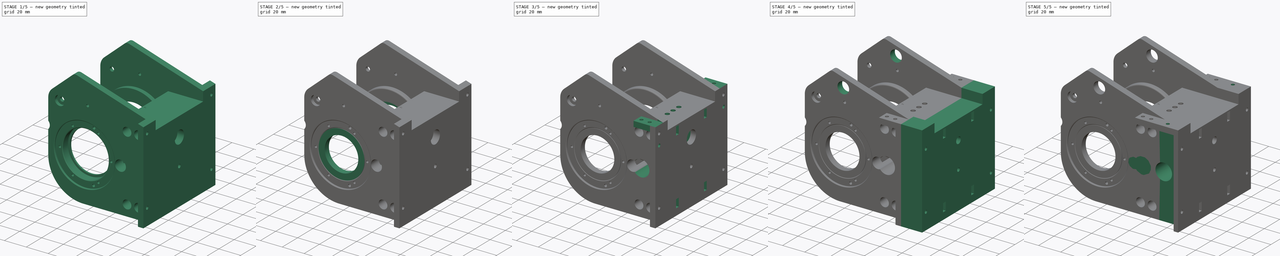
[diagram: build sequence overview — one tinted view per stage of 5, left to right]
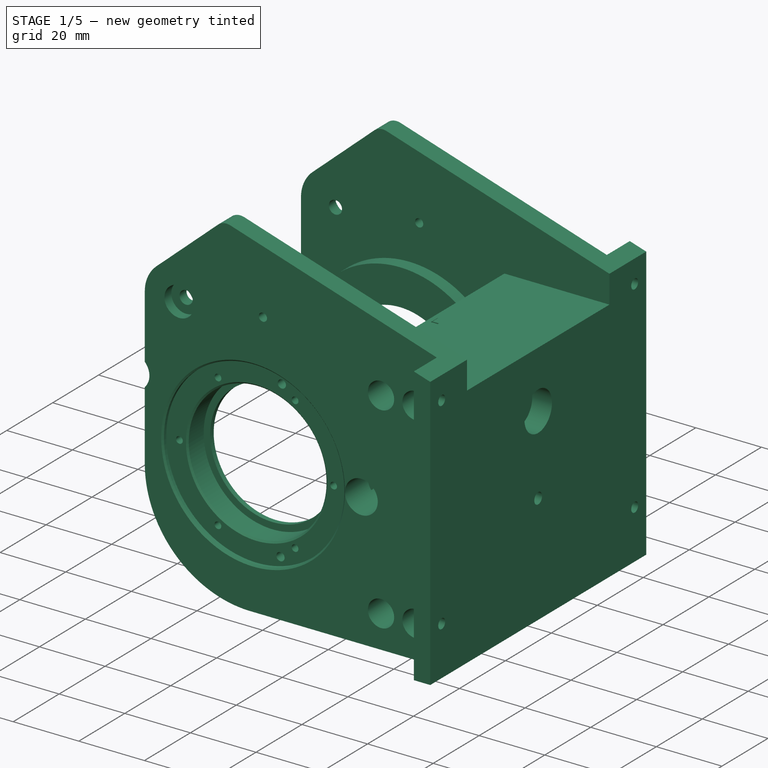
[diagram: stage 1 of 5 — iso view after this stage's code; geometry added in this stage tinted green]
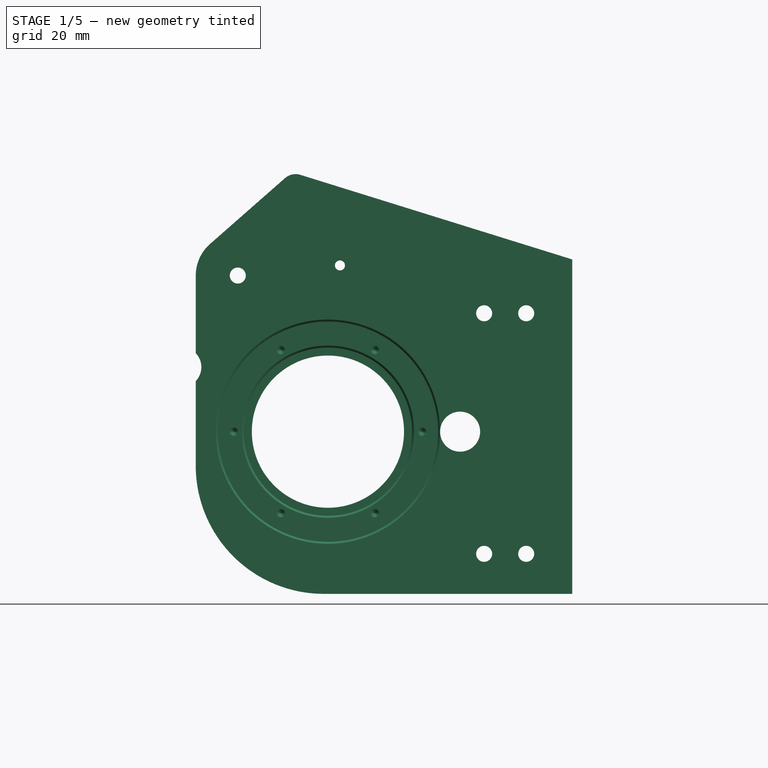
[diagram: stage 1 of 5 — front view after this stage's code; geometry added in this stage tinted green]
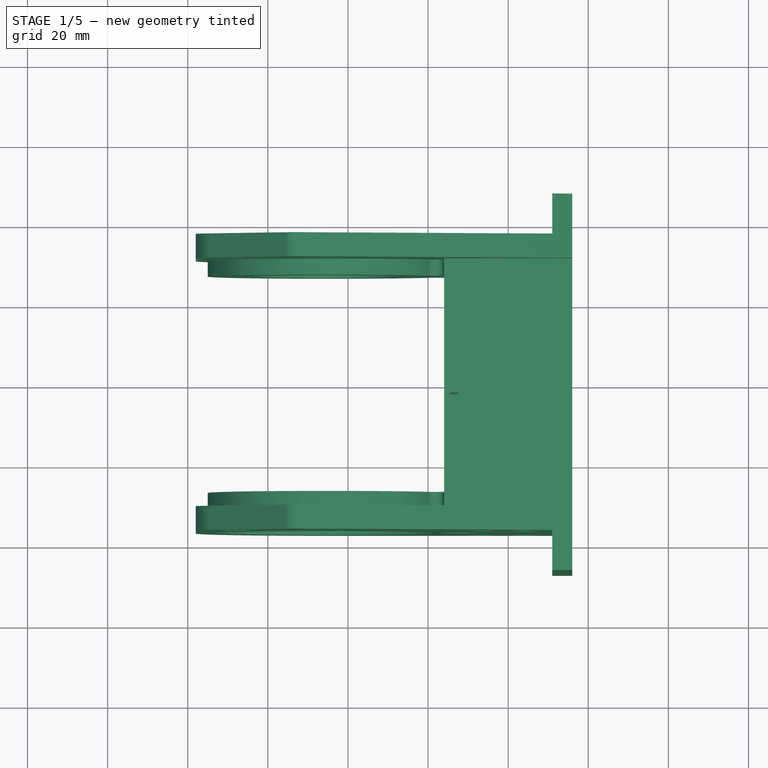
[diagram: stage 1 of 5 — top view after this stage's code; geometry added in this stage tinted green]
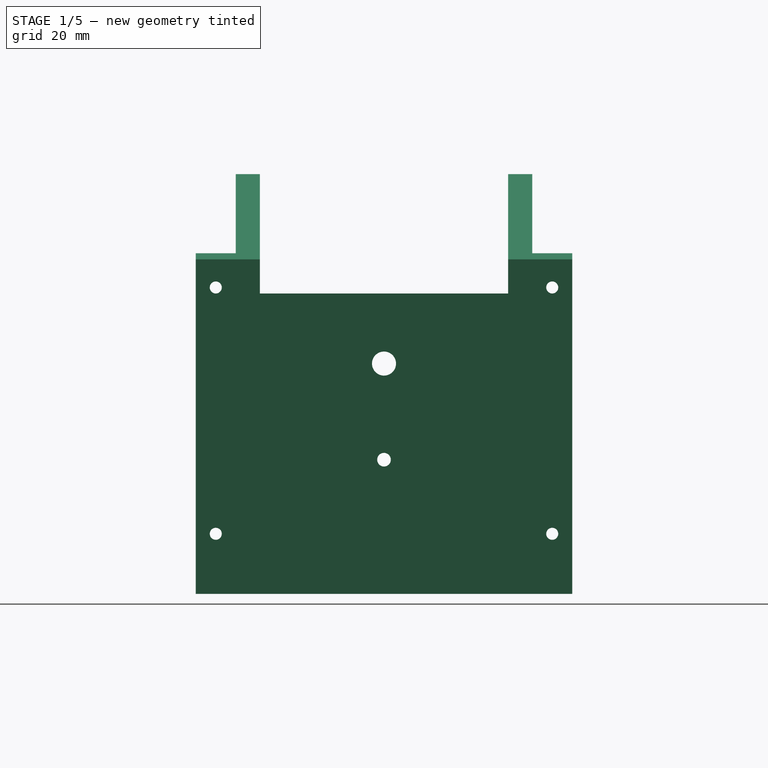
[diagram: stage 1 of 5 — right view after this stage's code; geometry added in this stage tinted green]
FCSTD DOCUMENT  (FreeCAD 0.21R33668 +26 (Git))
Label: 6_Robot_Link1_center_01
License: All rights reserved
LicenseURL: https://en.wikipedia.org/wiki/All_rights_reserved
objects: Sketcher::SketchObject×37, PartDesign::Pocket×25, PartDesign::Pad×11, Part::Feature×1, PartDesign::FeatureBase×1, PartDesign::Fillet×1, PartDesign::Body×1
note: 114 computed .brp shape members not serialized (recipe doc carries the construction recipe); baked Part::Feature solids carry a one-line shape summary decoded from their .brp

FEATURE [Part::Feature] Part__Feature  label="6_Robot_Link1_center_1_unit"
  shape: bbox 94 x 94 x 105.3 mm, 238 faces (baked)
FEATURE [PartDesign::FeatureBase] BaseFeature
  BaseFeature = -> Part__Feature
FEATURE [Sketcher::SketchObject] Sketch
  ExternalGeometry = -> [BaseFeature]
  FullyConstrained = true
  MapMode = 5
  Placement = pos=(-70.8,0,0) rot=(0.57735,-0.57735,-0.57735;2.0944rad)
  Support = -> [BaseFeature]
  sketch-geometry (1):
    g0: Circle CenterX=0 CenterY=-50.5 CenterZ=0 NormalX=0 NormalY=0 NormalZ=1 AngleXU=0 Radius=5.6
  constraints (2):
    c: Coincident(g0,g-3)
    c: Tangent(g0,g-3)
FEATURE [PartDesign::Pocket] Pocket
  BaseFeature = -> BaseFeature
  Direction = (1,0,0)
  Length = 22
  Length2 = 5
  Profile = -> Sketch
  ReferenceAxis = -> Sketch [N_Axis]
  Type = 0
FEATURE [Sketcher::SketchObject] Sketch001
  ExternalGeometry = -> [Pocket]
  FullyConstrained = true
  MapMode = 5
  Placement = pos=(0,-37,0) rot=(1,0,0;1.5708rad)
  Support = -> [Pocket]
  sketch-geometry (1):
    g0: Circle CenterX=-127.5 CenterY=-4.52886 CenterZ=0 NormalX=0 NormalY=0 NormalZ=1 AngleXU=0 Radius=7.5
  constraints (2):
    c: Coincident(g0,g-3)
    c: Diameter(g0) = 15
FEATURE [PartDesign::Pad] Pad
  BaseFeature = -> Pocket
  Direction = (0,-1,2e-16)
  Length = 10
  Length2 = 10
  Profile = -> Sketch001
  ReferenceAxis = -> Sketch001 [N_Axis]
  Reversed = true
  Type = 3
  UpToFace = -> Pocket [Face70]
FEATURE [Sketcher::SketchObject] Sketch002
  ExternalGeometry = -> [Pad]
  FullyConstrained = true
  MapMode = 5
  Placement = pos=(0,31,0) rot=(1,0,0;1.5708rad)
  Support = -> [Pad]
  sketch-geometry (1):
    g0: Circle CenterX=-127.5 CenterY=-4.52886 CenterZ=0 NormalX=0 NormalY=0 NormalZ=1 AngleXU=0 Radius=7.5
  constraints (2):
    c: Coincident(g0,g-3)
    c: Diameter(g0) = 15
FEATURE [PartDesign::Pad] Pad001
  BaseFeature = -> Pad
  Direction = (0,-1,2e-16)
  Length = 10
  Length2 = 10
  Profile = -> Sketch002
  ReferenceAxis = -> Sketch002 [N_Axis]
  Reversed = true
  Type = 3
  UpToFace = -> Pad [Face11]
FEATURE [Sketcher::SketchObject] Sketch003
  ExternalGeometry = -> [Pad001]
  FullyConstrained = true
  MapMode = 5
  Placement = pos=(0,-37,0) rot=(1,0,0;1.5708rad)
  Support = -> [Pad001]
  sketch-geometry (1):
    g0: Circle CenterX=-127.5 CenterY=-4.52886 CenterZ=0 NormalX=0 NormalY=0 NormalZ=1 AngleXU=0 Radius=2
  constraints (2):
    c: Coincident(g0,g-3)
    c: Diameter(g0) = 4
FEATURE [PartDesign::Pocket] Pocket001
  BaseFeature = -> Pad001
  Direction = (0,1,-2e-16)
  Length = 5
  Length2 = 5
  Profile = -> Sketch003
  ReferenceAxis = -> Sketch003 [N_Axis]
  Type = 1
FEATURE [Sketcher::SketchObject] Sketch004
  ExternalGeometry = -> [Pocket001]
  FullyConstrained = true
  MapMode = 5
  Placement = pos=(0,-37,0) rot=(1,0,0;1.5708rad)
  Support = -> [Pocket001]
  sketch-geometry (1):
    g0: Circle CenterX=-127.5 CenterY=-4.52886 CenterZ=0 NormalX=0 NormalY=0 NormalZ=1 AngleXU=0 Radius=4.5
  constraints (2):
    c: Coincident(g0,g-3)
    c: Diameter(g0) = 9
FEATURE [PartDesign::Pocket] Pocket002
  BaseFeature = -> Pocket001
  Direction = (0,1,-2e-16)
  Length = 3
  Length2 = 5
  Profile = -> Sketch004
  ReferenceAxis = -> Sketch004 [N_Axis]
  Type = 0
FEATURE [Sketcher::SketchObject] Sketch005
  ExternalGeometry = -> [Pocket002]
  FullyConstrained = true
  MapMode = 5
  Placement = pos=(0,37,0) rot=(0,0.707107,0.707107;3.14159rad)
  Support = -> [Pocket002]
  sketch-geometry (1):
    g0: Circle CenterX=127.5 CenterY=-4.52886 CenterZ=0 NormalX=0 NormalY=0 NormalZ=1 AngleXU=0 Radius=4.5
  constraints (2):
    c: Coincident(g0,g-3)
    c: Diameter(g0) = 9
FEATURE [PartDesign::Pocket] Pocket003
  BaseFeature = -> Pocket002
  Direction = (0,-1,2e-16)
  Length = 3
  Length2 = 5
  Profile = -> Sketch005
  ReferenceAxis = -> Sketch005 [N_Axis]
  Type = 0
FEATURE [Sketcher::SketchObject] Sketch006
  ExternalGeometry = -> [Pocket003]
  FullyConstrained = true
  MapMode = 5
  Placement = pos=(-76,0,0) rot=(0.57735,-0.57735,-0.57735;2.0944rad)
  Support = -> [Pocket003]
  sketch-geometry (7):
    g0: LineSegment StartX=5.19615 StartY=-29.5 StartZ=0 EndX=5.19615 EndY=-23.5 EndZ=0
    g1: LineSegment StartX=5.19615 StartY=-23.5 StartZ=0 EndX=0 EndY=-20.5 EndZ=0
    g2: LineSegment StartX=0 StartY=-20.5 StartZ=0 EndX=-5.19615 EndY=-23.5 EndZ=0
    g3: LineSegment StartX=-5.19615 StartY=-23.5 StartZ=0 EndX=-5.19615 EndY=-29.5 EndZ=0
    g4: LineSegment StartX=-5.19615 StartY=-29.5 StartZ=0 EndX=6.324e-13 EndY=-32.5 EndZ=0
    g5: LineSegment StartX=6.326e-13 StartY=-32.5 StartZ=0 EndX=5.19615 EndY=-29.5 EndZ=0
    g6: Circle CenterX=0 CenterY=-26.5 CenterZ=0 NormalX=0 NormalY=0 NormalZ=1 AngleXU=0 Radius=6
  constraints (17):
    c: Coincident(g0,g1)
    c: Coincident(g1,g2)
    c: Coincident(g2,g3)
    c: Coincident(g3,g4)
    c: Coincident(g4,g5)
    c: Coincident(g5,g0)
    c: Equal(g0, g1-g5) x5
    c: PointOnObject(g0,g6)
    c: PointOnObject(g1,g6)
    c: PointOnObject(g2,g6)
    c: PointOnObject(g3,g6)
    c: PointOnObject(g4,g6)
    c: PointOnObject(g5,g6)
    c: Diameter(g6) = 12
    c: Vertical(g6,g-3)
    c: Horizontal(g6,g-3)
    c: Vertical(g1,g6)
FEATURE [PartDesign::Pocket] Pocket004
  BaseFeature = -> Pocket003
  Direction = (1,0,0)
  Length = 22
  Length2 = 5
  Profile = -> Sketch006
  ReferenceAxis = -> Sketch006 [N_Axis]
  Type = 0
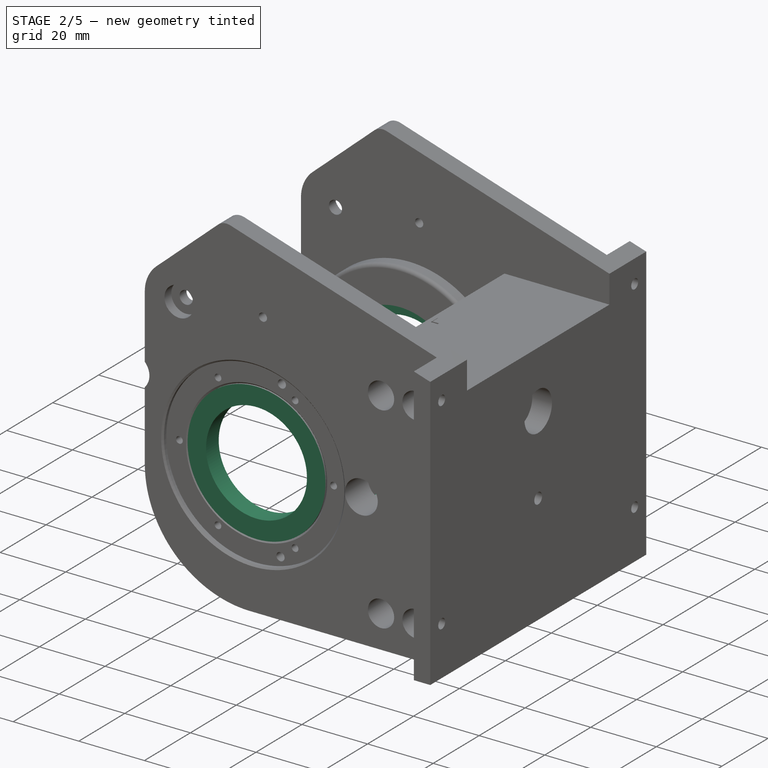
[diagram: stage 2 of 5 — iso view after this stage's code; geometry added in this stage tinted green]
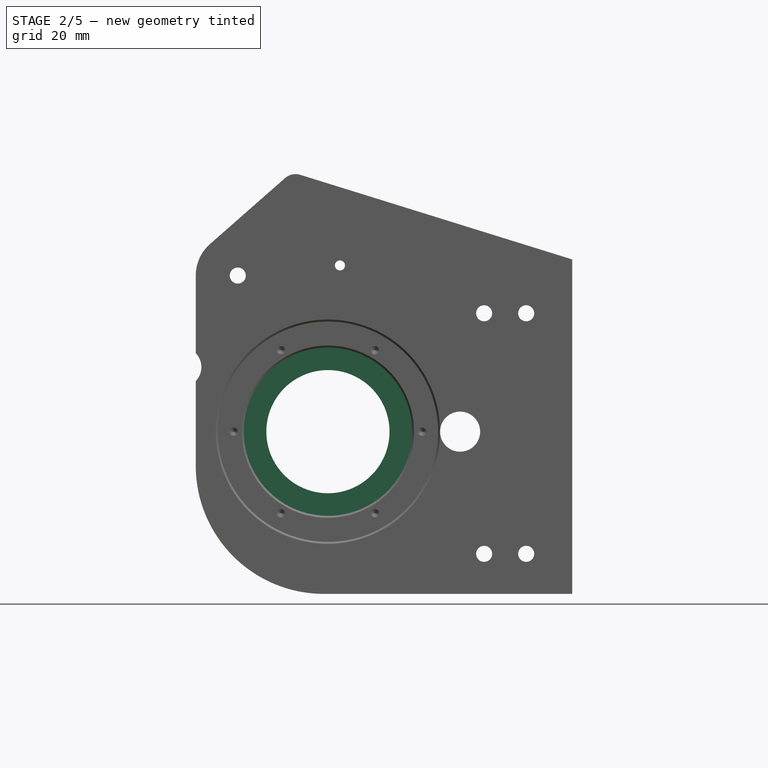
[diagram: stage 2 of 5 — front view after this stage's code; geometry added in this stage tinted green]
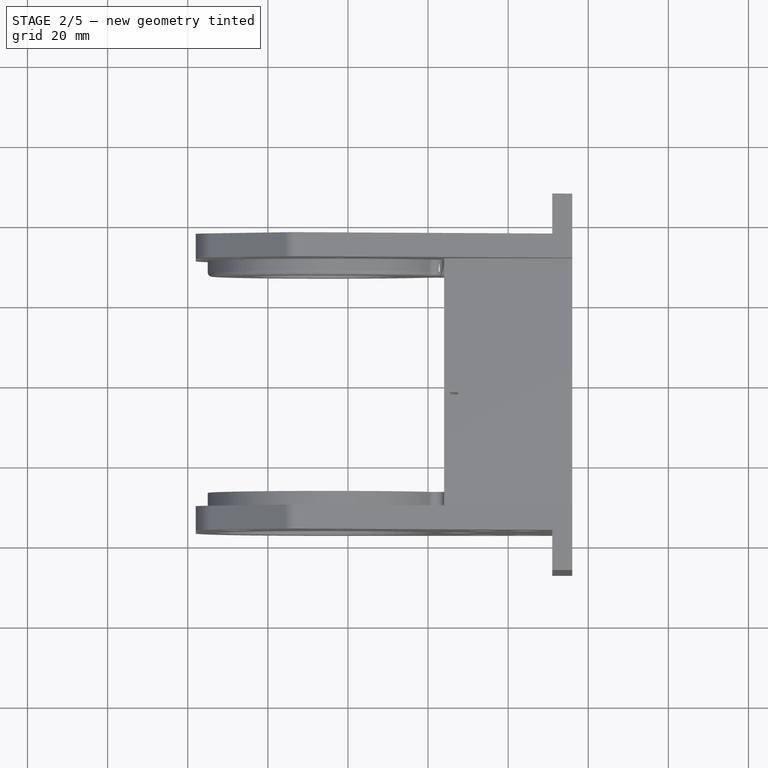
[diagram: stage 2 of 5 — top view after this stage's code; geometry added in this stage tinted green]
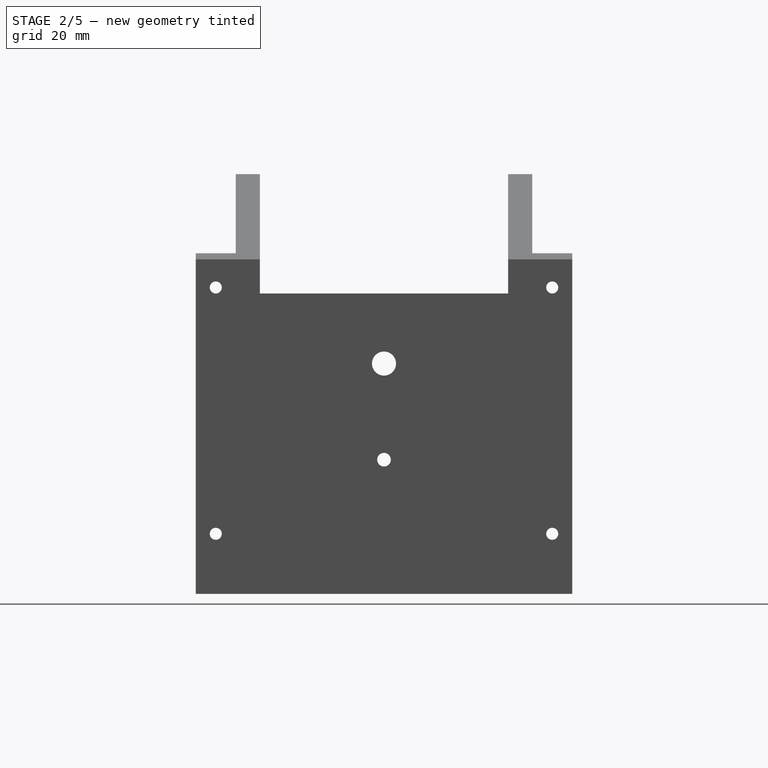
[diagram: stage 2 of 5 — right view after this stage's code; geometry added in this stage tinted green]
FEATURE [PartDesign::Fillet] Fillet
  Base = -> Pocket004 [Edge228,Edge227,Edge164,Edge160]
  BaseFeature = -> Pocket004
  Radius = 1.1
  SupportTransform = false
  UseAllEdges = false
FEATURE [Sketcher::SketchObject] Sketch007
  ExternalGeometry = -> [Fillet]
  FullyConstrained = true
  MapMode = 5
  Placement = pos=(-76,0,0) rot=(0.57735,-0.57735,-0.57735;2.0944rad)
  Support = -> [Fillet]
  sketch-geometry (1):
    g0: Circle CenterX=0 CenterY=-26.5 CenterZ=0 NormalX=0 NormalY=0 NormalZ=1 AngleXU=0 Radius=6
  constraints (2):
    c: Coincident(g0,g-3)
    c: Diameter(g0) = 12
FEATURE [PartDesign::Pocket] Pocket005
  BaseFeature = -> Fillet
  Direction = (1,0,0)
  Length = 15
  Length2 = 5
  Profile = -> Sketch007
  ReferenceAxis = -> Sketch007 [N_Axis]
  Type = 0
FEATURE [Sketcher::SketchObject] Sketch008
  ExternalGeometry = -> [Pocket005]
  FullyConstrained = true
  MapMode = 5
  Placement = pos=(0,28.5,0) rot=(0,0.707107,0.707107;3.14159rad)
  Support = -> [Pocket005]
  sketch-geometry (1):
    g0: Circle CenterX=105 CenterY=-43.5 CenterZ=0 NormalX=0 NormalY=0 NormalZ=1 AngleXU=0 Radius=21
  constraints (2):
    c: Coincident(g0,g-4)
    c: PointOnObject(g-4,g0)
FEATURE [PartDesign::Pad] Pad002
  BaseFeature = -> Pocket005
  Direction = (0,1,-2e-16)
  Length = 10
  Length2 = 10
  Profile = -> Sketch008
  ReferenceAxis = -> Sketch008 [N_Axis]
  Type = 3
  UpToFace = -> Pocket005 [Face218]
FEATURE [Sketcher::SketchObject] Sketch009
  ExternalGeometry = -> [Pad002]
  FullyConstrained = true
  MapMode = 5
  Placement = pos=(0,-28.5,0) rot=(1,0,0;1.5708rad)
  Support = -> [Pad002]
  sketch-geometry (1):
    g0: Circle CenterX=-105 CenterY=-43.5 CenterZ=0 NormalX=0 NormalY=0 NormalZ=1 AngleXU=0 Radius=21
  constraints (2):
    c: Coincident(g0,g-3)
    c: PointOnObject(g-4,g0)
FEATURE [PartDesign::Pad] Pad003
  BaseFeature = -> Pad002
  Direction = (0,-1,2e-16)
  Length = 10
  Length2 = 10
  Profile = -> Sketch009
  ReferenceAxis = -> Sketch009 [N_Axis]
  Type = 3
  UpToFace = -> Pad002 [Face142]
FEATURE [Sketcher::SketchObject] Sketch010
  ExternalGeometry = -> [Pad003]
  FullyConstrained = true
  MapMode = 5
  Placement = pos=(0,35.5,0) rot=(0,0.707107,0.707107;3.14159rad)
  Support = -> [Pad003]
  sketch-geometry (1):
    g0: Circle CenterX=105 CenterY=-43.5 CenterZ=0 NormalX=0 NormalY=0 NormalZ=1 AngleXU=0 Radius=15.375
  constraints (2):
    c: Coincident(g0,g-3)
    c: Diameter(g0) = 30.75
FEATURE [PartDesign::Pocket] Pocket006
  BaseFeature = -> Pad003
  Direction = (0,-1,2e-16)
  Length = 5
  Length2 = 5
  Profile = -> Sketch010
  ReferenceAxis = -> Sketch010 [N_Axis]
  Type = 1
FEATURE [Sketcher::SketchObject] Sketch011
  ExternalGeometry = -> [Pocket006]
  FullyConstrained = true
  MapMode = 5
  Placement = pos=(0,-28.5,5.7e-15) rot=(0,0.707107,0.707107;3.14159rad)
  Support = -> [Pocket006]
  sketch-geometry (1):
    g0: Circle CenterX=105 CenterY=-43.5 CenterZ=0 NormalX=0 NormalY=0 NormalZ=1 AngleXU=0 Radius=17.5
  constraints (2):
    c: Coincident(g0,g-3)
    c: Diameter(g0) = 35
FEATURE [PartDesign::Pocket] Pocket007
  BaseFeature = -> Pocket006
  Direction = (0,-1,2e-16)
  Length = 1.5
  Length2 = 5
  Profile = -> Sketch011
  ReferenceAxis = -> Sketch011 [N_Axis]
  Type = 0
FEATURE [Sketcher::SketchObject] Sketch012
  ExternalGeometry = -> [Pocket007]
  FullyConstrained = true
  MapMode = 5
  Placement = pos=(0,28.5,-5.7e-15) rot=(1,0,0;1.5708rad)
  Support = -> [Pocket007]
  sketch-geometry (1):
    g0: Circle CenterX=-105 CenterY=-43.5 CenterZ=0 NormalX=0 NormalY=0 NormalZ=1 AngleXU=0 Radius=17.5
  constraints (2):
    c: Coincident(g0,g-3)
    c: Diameter(g0) = 35
FEATURE [PartDesign::Pocket] Pocket008
  BaseFeature = -> Pocket007
  Direction = (0,1,-2e-16)
  Length = 1.5
  Length2 = 5
  Profile = -> Sketch012
  ReferenceAxis = -> Sketch012 [N_Axis]
  Type = 0
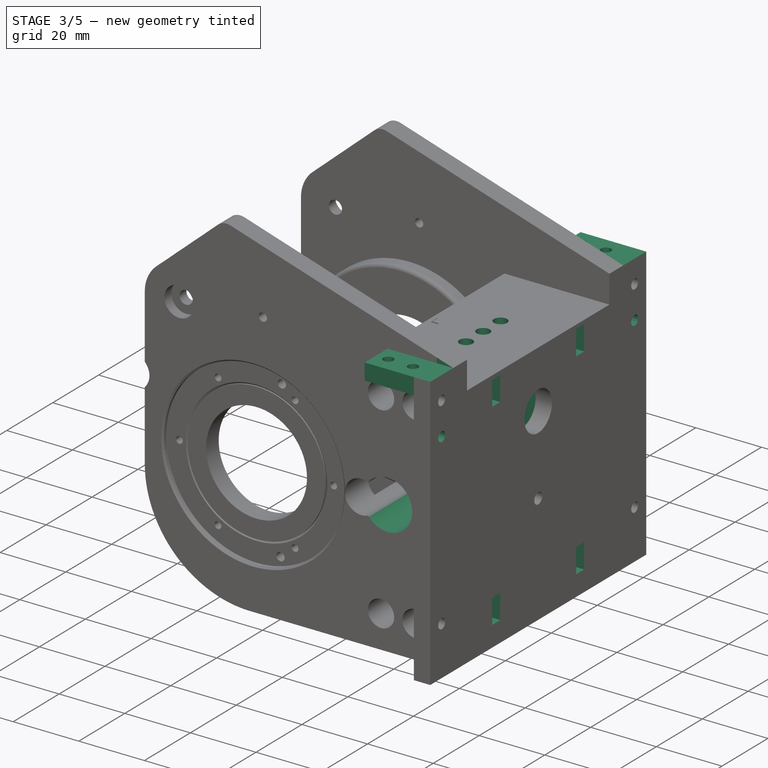
[diagram: stage 3 of 5 — iso view after this stage's code; geometry added in this stage tinted green]
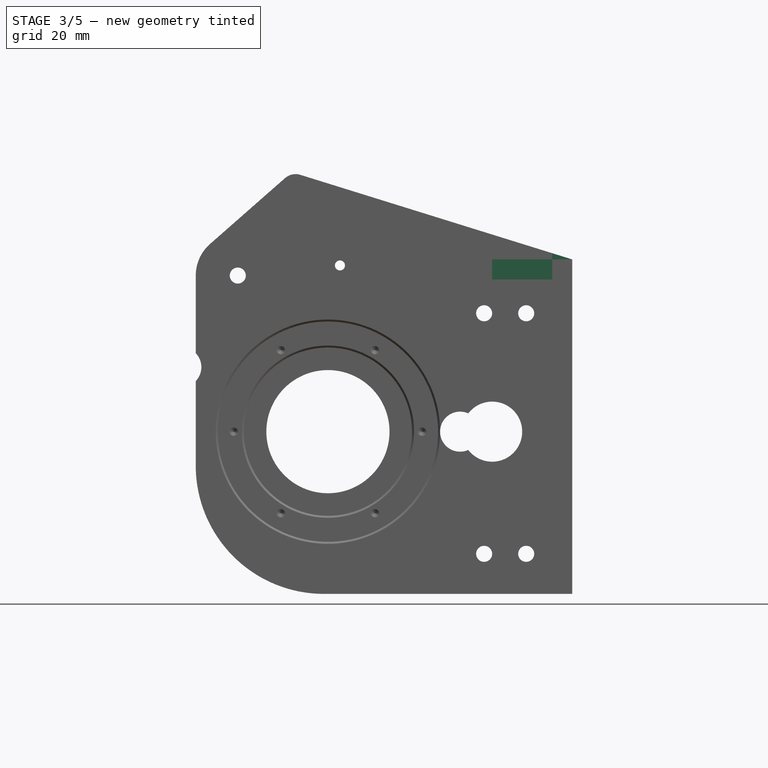
[diagram: stage 3 of 5 — front view after this stage's code; geometry added in this stage tinted green]
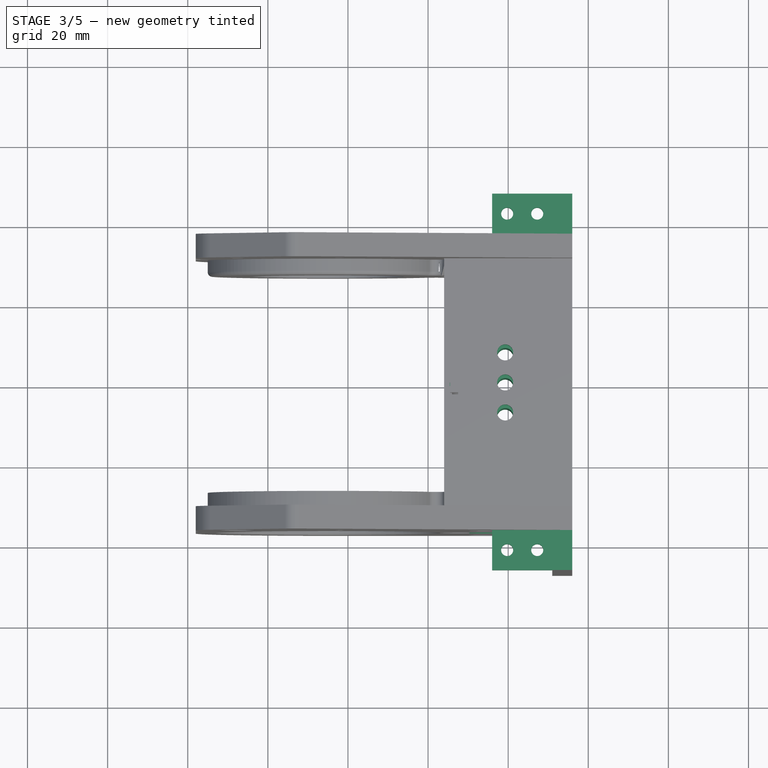
[diagram: stage 3 of 5 — top view after this stage's code; geometry added in this stage tinted green]
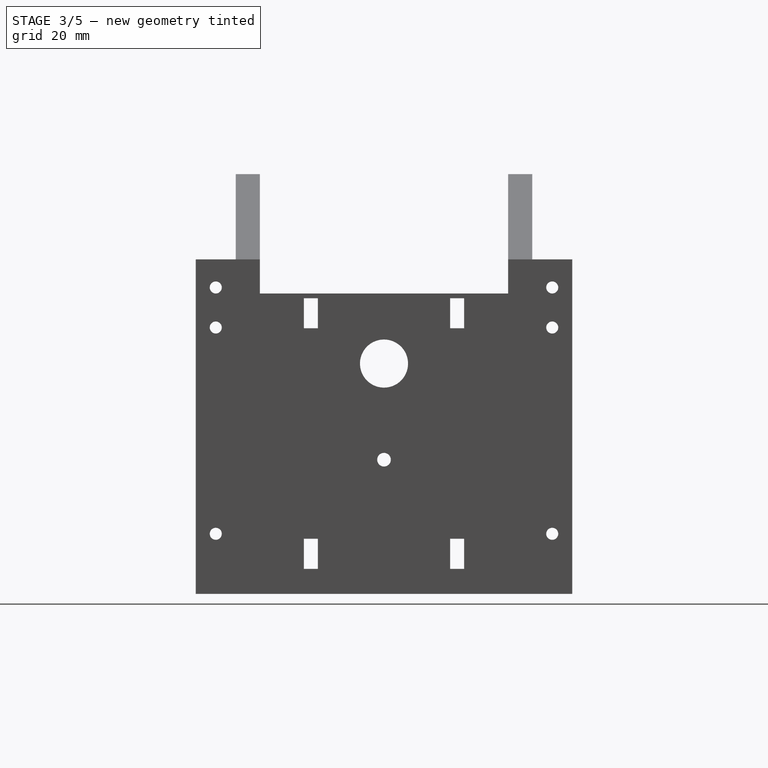
[diagram: stage 3 of 5 — right view after this stage's code; geometry added in this stage tinted green]
FEATURE [Sketcher::SketchObject] Sketch014
  FullyConstrained = false
  MapMode = 5
  Placement = pos=(-76,0,0) rot=(0.57735,-0.57735,-0.57735;2.0944rad)
  sketch-geometry (4):
    g0: LineSegment StartX=-14 StartY=-14 StartZ=0 EndX=14 EndY=-14 EndZ=0
    g1: LineSegment StartX=14 StartY=-14 StartZ=0 EndX=14 EndY=-61 EndZ=0
    g2: LineSegment StartX=14 StartY=-61 StartZ=0 EndX=-14 EndY=-61 EndZ=0
    g3: LineSegment StartX=-14 StartY=-61 StartZ=0 EndX=-14 EndY=-14 EndZ=0
  constraints (11):
    c: Coincident(g0,g1)
    c: Coincident(g1,g2)
    c: Coincident(g2,g3)
    c: Coincident(g3,g0)
    c: Horizontal(g0)
    c: Horizontal(g2)
    c: Vertical(g1)
    c: Vertical(g3)
    c: DistanceX(g-1,g0) = 14
    c: DistanceX(g0,g-1) = 14
    c: DistanceY(g1,g1) = 47
FEATURE [PartDesign::Pocket] Pocket009
  BaseFeature = -> Pocket008
  Direction = (1,0,0)
  Length = 27
  Length2 = 5
  Profile = -> Sketch014
  ReferenceAxis = -> Sketch014 [N_Axis]
  Type = 0
FEATURE [Sketcher::SketchObject] Sketch015
  ExternalGeometry = -> [Pocket009]
  FullyConstrained = true
  MapMode = 5
  Placement = pos=(0,37,-1.04e-14) rot=(0,0.707107,0.707107;3.14159rad)
  Support = -> [Pocket009]
  sketch-geometry (1):
    g0: Circle CenterX=64 CenterY=-43.5 CenterZ=0 NormalX=0 NormalY=0 NormalZ=1 AngleXU=0 Radius=7.5
  constraints (3):
    c: Diameter(g0) = 15
    c: Horizontal(g0,g-4)
    c: DistanceX(g-3,g0) = 15
FEATURE [PartDesign::Pocket] Pocket010
  BaseFeature = -> Pocket009
  Direction = (0,-1,2e-16)
  Length = 5
  Length2 = 5
  Profile = -> Sketch015
  ReferenceAxis = -> Sketch015 [N_Axis]
  Type = 1
FEATURE [Sketcher::SketchObject] Sketch016
  ExternalGeometry = -> [Pocket010]
  FullyConstrained = true
  MapMode = 5
  Placement = pos=(-76,0,0) rot=(0.57735,-0.57735,-0.57735;2.0944rad)
  Support = -> [Pocket010]
  sketch-geometry (16):
    g0: LineSegment StartX=16.5 StartY=-10.1944 StartZ=0 EndX=20 EndY=-10.1944 EndZ=0
    g1: LineSegment StartX=20 StartY=-10.1944 StartZ=0 EndX=20 EndY=-17.6944 EndZ=0
    g2: LineSegment StartX=20 StartY=-17.6944 StartZ=0 EndX=16.5 EndY=-17.6944 EndZ=0
    g3: LineSegment StartX=16.5 StartY=-17.6944 StartZ=0 EndX=16.5 EndY=-10.1944 EndZ=0
    g4: LineSegment StartX=-20 StartY=-10.1944 StartZ=0 EndX=-16.5 EndY=-10.1944 EndZ=0
    g5: LineSegment StartX=-16.5 StartY=-10.1944 StartZ=0 EndX=-16.5 EndY=-17.6944 EndZ=0
    g6: LineSegment StartX=-16.5 StartY=-17.6944 StartZ=0 EndX=-20 EndY=-17.6944 EndZ=0
    g7: LineSegment StartX=-20 StartY=-17.6944 StartZ=0 EndX=-20 EndY=-10.1944 EndZ=0
    g8: LineSegment StartX=16.5 StartY=-70.25 StartZ=0 EndX=20 EndY=-70.25 EndZ=0
    g9: LineSegment StartX=20 StartY=-70.25 StartZ=0 EndX=20 EndY=-77.75 EndZ=0
    g10: LineSegment StartX=20 StartY=-77.75 StartZ=0 EndX=16.5 EndY=-77.75 EndZ=0
    g11: LineSegment StartX=16.5 StartY=-77.75 StartZ=0 EndX=16.5 EndY=-70.25 EndZ=0
    g12: LineSegment StartX=-20 StartY=-70.25 StartZ=0 EndX=-16.5 EndY=-70.25 EndZ=0
    g13: LineSegment StartX=-16.5 StartY=-70.25 StartZ=0 EndX=-16.5 EndY=-77.75 EndZ=0
    g14: LineSegment StartX=-16.5 StartY=-77.75 StartZ=0 EndX=-20 EndY=-77.75 EndZ=0
    g15: LineSegment StartX=-20 StartY=-77.75 StartZ=0 EndX=-20 EndY=-70.25 EndZ=0
  constraints (49):
    c: Coincident(g0,g1)
    c: Coincident(g1,g2)
    c: Coincident(g2,g3)
    c: Coincident(g3,g0)
    c: Horizontal(g0)
    c: Horizontal(g2)
    c: Vertical(g1)
    c: Vertical(g3)
    c: Coincident(g4,g5)
    c: Coincident(g5,g6)
    c: Coincident(g6,g7)
    c: Coincident(g7,g4)
    c: Horizontal(g4)
    c: Horizontal(g6)
    c: Vertical(g5)
    c: Vertical(g7)
    c: Coincident(g8,g9)
    c: Coincident(g9,g10)
    c: Coincident(g10,g11)
    c: Coincident(g11,g8)
    c: Horizontal(g8)
    c: Horizontal(g10)
    c: Vertical(g9)
    c: Vertical(g11)
    c: Coincident(g12,g13)
    c: Coincident(g13,g14)
    c: Coincident(g14,g15)
    c: Coincident(g15,g12)
    c: Horizontal(g12)
    c: Horizontal(g14)
    c: Vertical(g13)
    c: Vertical(g15)
    c: DistanceY(g9,g9) = 7.5
    c: DistanceY(g13,g13) = 7.5
    c: Horizontal(g12,g8)
    c: Horizontal(g2,g5)
    c: Horizontal(g4,g0)
    c: Vertical(g5,g12)
    c: DistanceX(g12,g12) = 3.5
    c: DistanceX(g8,g8) = 3.5
    c: DistanceY(g-4,g-4) = 8
    c: DistanceY(g-4,g9) = 0.25
    c: DistanceY(g1,g1) = 7.5
    c: DistanceY(g0,g-3) = 0.25
    c: Vertical(g1,g8)
    c: Vertical(g2,g8)
    c: Vertical(g6,g12)
    c: DistanceX(g0,g-3) = 17
    c: DistanceX(g-5,g4) = 17
FEATURE [PartDesign::Pocket] Pocket011
  BaseFeature = -> Pocket010
  Direction = (1,0,0)
  Length = 5
  Length2 = 5
  Profile = -> Sketch016
  ReferenceAxis = -> Sketch016 [N_Axis]
  Type = 1
FEATURE [Sketcher::SketchObject] Sketch017
  ExternalGeometry = -> [Pocket011]
  FullyConstrained = true
  MapMode = 5
  Placement = pos=(0,-1.85e-14,-84) rot=(1,0,0;3.14159rad)
  Support = -> [Pocket011]
  sketch-geometry (3):
    g0: Circle CenterX=-60.75 CenterY=7.5 CenterZ=0 NormalX=0 NormalY=0 NormalZ=1 AngleXU=0 Radius=2
    g1: Circle CenterX=-60.75 CenterY=0 CenterZ=0 NormalX=0 NormalY=0 NormalZ=1 AngleXU=0 Radius=2
    g2: Circle CenterX=-60.75 CenterY=-7.5 CenterZ=0 NormalX=0 NormalY=0 NormalZ=1 AngleXU=0 Radius=2
  constraints (10):
    c: Diameter(g0) = 4
    c: Diameter(g1) = 4
    c: Diameter(g2) = 4
    c: Vertical(g0,g1)
    c: Vertical(g2,g1)
    c: DistanceY(g2,g1) = 7.5
    c: DistanceY(g-1,g0) = 7.5
    c: DistanceY(g1,g-1) = 0
    c: DistanceX(g-4,g-3) = 2.5
    c: DistanceX(g0,g-3) = 1.25
FEATURE [PartDesign::Pocket] Pocket012
  BaseFeature = -> Pocket011
  Direction = (0,2e-16,1)
  Length = 5
  Length2 = 5
  Profile = -> Sketch017
  ReferenceAxis = -> Sketch017 [N_Axis]
  Type = 1
FEATURE [Sketcher::SketchObject] Sketch018
  ExternalGeometry = -> [Pocket012]
  FullyConstrained = false
  MapMode = 5
  Placement = pos=(-49,0,0) rot=(0.57735,-0.57735,-0.57735;2.0944rad)
  Support = -> [Pocket012]
  sketch-geometry (8):
    g0: LineSegment StartX=-47 StartY=-0.5 StartZ=0 EndX=-37 EndY=-0.5 EndZ=0
    g1: LineSegment StartX=-37 StartY=-0.5 StartZ=0 EndX=-37 EndY=5.24842 EndZ=0
    g2: LineSegment StartX=-37 StartY=5.24842 StartZ=0 EndX=-47 EndY=5.24842 EndZ=0
    g3: LineSegment StartX=-47 StartY=5.24842 StartZ=0 EndX=-47 EndY=-0.5 EndZ=0
    g4: LineSegment StartX=47 StartY=-0.5 StartZ=0 EndX=37 EndY=-0.5 EndZ=0
    g5: LineSegment StartX=37 StartY=-0.5 StartZ=0 EndX=37 EndY=9.89827 EndZ=0
    g6: LineSegment StartX=37 StartY=9.89827 StartZ=0 EndX=47 EndY=9.89827 EndZ=0
    g7: LineSegment StartX=47 StartY=9.89827 StartZ=0 EndX=47 EndY=-0.5 EndZ=0
  constraints (20):
    c: Coincident(g0,g1)
    c: Coincident(g1,g2)
    c: Coincident(g2,g3)
    c: Coincident(g3,g0)
    c: Horizontal(g0)
    c: Horizontal(g2)
    c: Vertical(g1)
    c: Vertical(g3)
    c: Coincident(g0,g-4)
    c: Vertical(g1,g-5)
    c: Coincident(g4,g5)
    c: Coincident(g5,g6)
    c: Coincident(g6,g7)
    c: Coincident(g7,g4)
    c: Horizontal(g4)
    c: Horizontal(g6)
    c: Vertical(g5)
    c: Vertical(g7)
    c: Coincident(g4,g-3)
    c: Vertical(g-6,g5)
FEATURE [PartDesign::Pocket] Pocket013
  BaseFeature = -> Pocket012
  Direction = (1,0,0)
  Length = 5
  Length2 = 5
  Profile = -> Sketch018
  ReferenceAxis = -> Sketch018 [N_Axis]
  Type = 1
FEATURE [Sketcher::SketchObject] Sketch019
  ExternalGeometry = -> [Pocket013]
  FullyConstrained = true
  MapMode = 5
  Placement = pos=(-49,0,0) rot=(0.57735,-0.57735,-0.57735;2.0944rad)
  Support = -> [Pocket013]
  sketch-geometry (2):
    g0: Circle CenterX=-42 CenterY=-17.5 CenterZ=0 NormalX=0 NormalY=0 NormalZ=1 AngleXU=0 Radius=1.5
    g1: Circle CenterX=42 CenterY=-17.5 CenterZ=0 NormalX=0 NormalY=0 NormalZ=1 AngleXU=0 Radius=1.5
  constraints (6):
    c: Horizontal(g0,g1)
    c: Diameter(g1) = 3
    c: Diameter(g0) = 3
    c: Vertical(g-3,g0)
    c: Vertical(g1,g-4)
    c: DistanceY(g1,g-4) = 10
FEATURE [PartDesign::Pocket] Pocket014
  BaseFeature = -> Pocket013
  Direction = (1,0,0)
  Length = 5
  Length2 = 5
  Profile = -> Sketch019
  ReferenceAxis = -> Sketch019 [N_Axis]
  Type = 1
FEATURE [Sketcher::SketchObject] Sketch020
  ExternalGeometry = -> [Pocket014]
  FullyConstrained = true
  MapMode = 5
  Placement = pos=(-49,0,0) rot=(0.57735,-0.57735,-0.57735;2.0944rad)
  Support = -> [Pocket014]
  sketch-geometry (8):
    g0: LineSegment StartX=37 StartY=-0.5 StartZ=0 EndX=47 EndY=-0.5 EndZ=0
    g1: LineSegment StartX=47 StartY=-0.5 StartZ=0 EndX=47 EndY=-5.5 EndZ=0
    g2: LineSegment StartX=47 StartY=-5.5 StartZ=0 EndX=37 EndY=-5.5 EndZ=0
    g3: LineSegment StartX=37 StartY=-5.5 StartZ=0 EndX=37 EndY=-0.5 EndZ=0
    g4: LineSegment StartX=-37 StartY=-0.5 StartZ=0 EndX=-47 EndY=-0.5 EndZ=0
    g5: LineSegment StartX=-47 StartY=-0.5 StartZ=0 EndX=-47 EndY=-5.5 EndZ=0
    g6: LineSegment StartX=-47 StartY=-5.5 StartZ=0 EndX=-37 EndY=-5.5 EndZ=0
    g7: LineSegment StartX=-37 StartY=-5.5 StartZ=0 EndX=-37 EndY=-0.5 EndZ=0
  constraints (22):
    c: Coincident(g0,g1)
    c: Coincident(g1,g2)
    c: Coincident(g2,g3)
    c: Coincident(g3,g0)
    c: Horizontal(g0)
    c: Horizontal(g2)
    c: Vertical(g1)
    c: Vertical(g3)
    c: Coincident(g0,g-4)
    c: Vertical(g0,g-4)
    c: DistanceY(g1,g1) = 5
    c: Coincident(g4,g5)
    c: Coincident(g5,g6)
    c: Coincident(g6,g7)
    c: Coincident(g7,g4)
    c: Horizontal(g4)
    c: Horizontal(g6)
    c: Vertical(g5)
    c: Vertical(g7)
    c: Coincident(g4,g-3)
    c: Vertical(g4,g-3)
    c: Horizontal(g5,g1)
FEATURE [PartDesign::Pad] Pad004
  BaseFeature = -> Pocket014
  Direction = (-1,0,0)
  Length = 15
  Length2 = 10
  Profile = -> Sketch020
  ReferenceAxis = -> Sketch020 [N_Axis]
  Type = 0
FEATURE [Sketcher::SketchObject] Sketch021
  ExternalGeometry = -> [Pad004]
  FullyConstrained = true
  MapMode = 5
  Placement = pos=(0,0,-0.5) rot=(0,0,1;0rad)
  Support = -> [Pad004]
  sketch-geometry (4):
    g0: Circle CenterX=-60.25 CenterY=-42 CenterZ=0 NormalX=0 NormalY=0 NormalZ=1 AngleXU=0 Radius=1.5
    g1: Circle CenterX=-52.75 CenterY=-42 CenterZ=0 NormalX=0 NormalY=0 NormalZ=1 AngleXU=0 Radius=1.5
    g2: Circle CenterX=-60.25 CenterY=42 CenterZ=0 NormalX=0 NormalY=0 NormalZ=1 AngleXU=0 Radius=1.5
    g3: Circle CenterX=-52.75 CenterY=42 CenterZ=0 NormalX=0 NormalY=0 NormalZ=1 AngleXU=0 Radius=1.5
  constraints (15):
    c: Diameter(g1) = 3
    c: Diameter(g0) = 3
    c: DistanceY(g-3,g-3) = 10
    c: DistanceY(g0,g-3) = 5
    c: Horizontal(g0,g1)
    c: DistanceX(g-4,g-4) = 15
    c: DistanceX(g-3,g0) = 3.75
    c: DistanceX(g1,g-4) = 3.75
    c: Equal(g3,g1)
    c: Equal(g2,g3)
    c: Horizontal(g2,g3)
    c: Vertical(g3,g1)
    c: Vertical(g0,g2)
    c: DistanceY(g-5,g-5) = 10
    c: DistanceY(g2,g-5) = 5
FEATURE [PartDesign::Pocket] Pocket015
  BaseFeature = -> Pad004
  Direction = (0,0,-1)
  Length = 5
  Length2 = 5
  Profile = -> Sketch021
  ReferenceAxis = -> Sketch021 [N_Axis]
  Type = 1
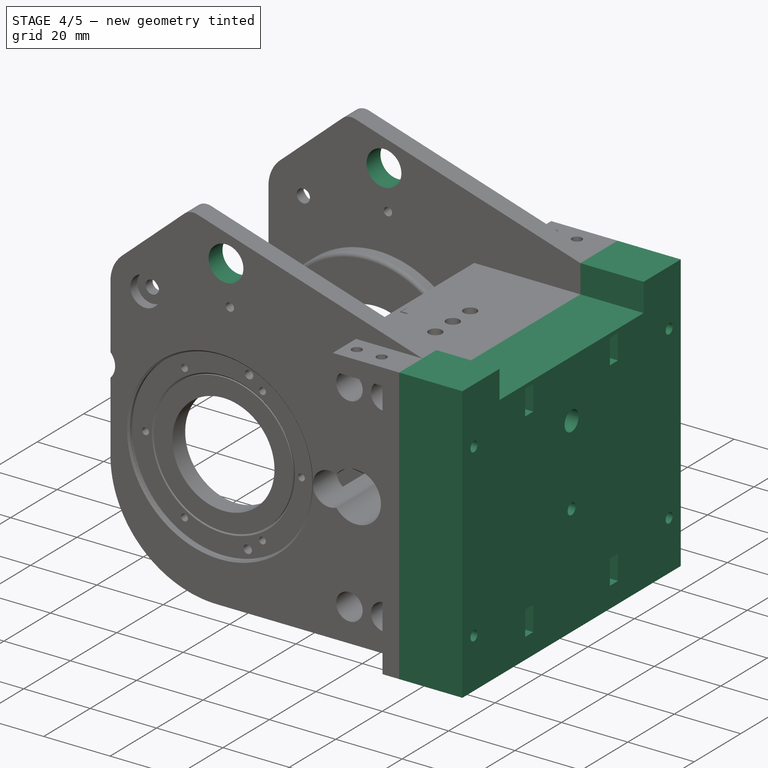
[diagram: stage 4 of 5 — iso view after this stage's code; geometry added in this stage tinted green]
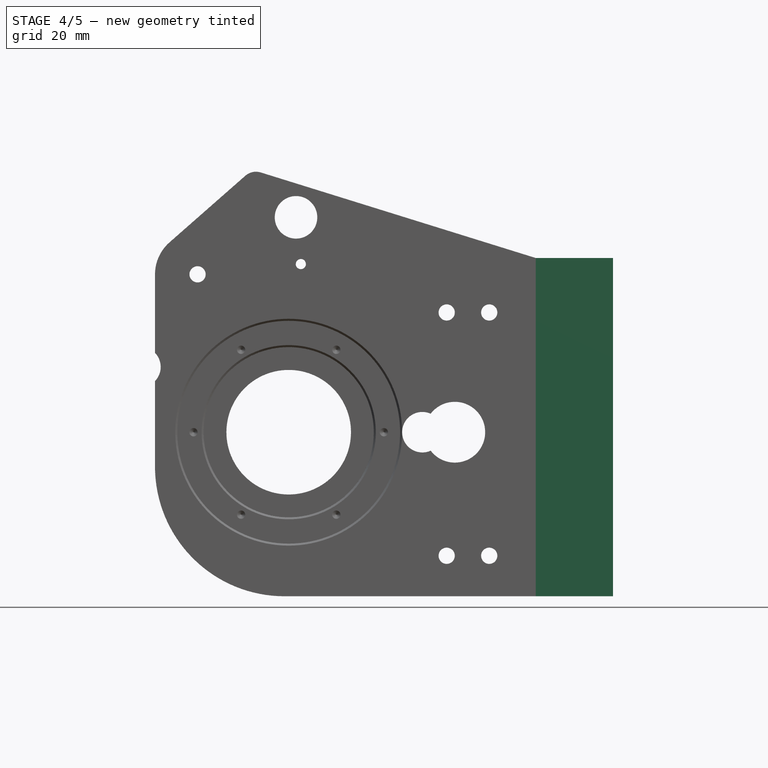
[diagram: stage 4 of 5 — front view after this stage's code; geometry added in this stage tinted green]
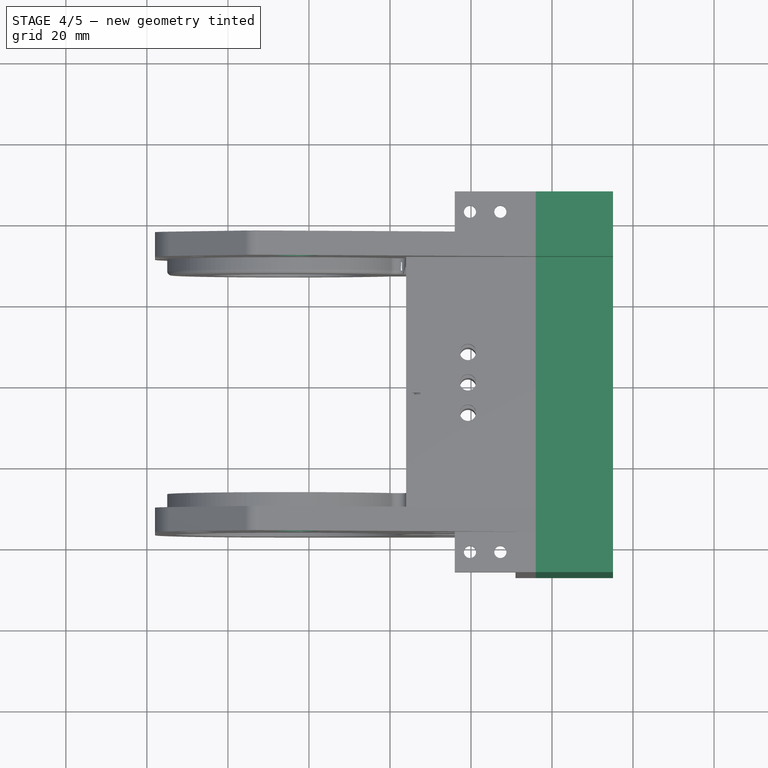
[diagram: stage 4 of 5 — top view after this stage's code; geometry added in this stage tinted green]
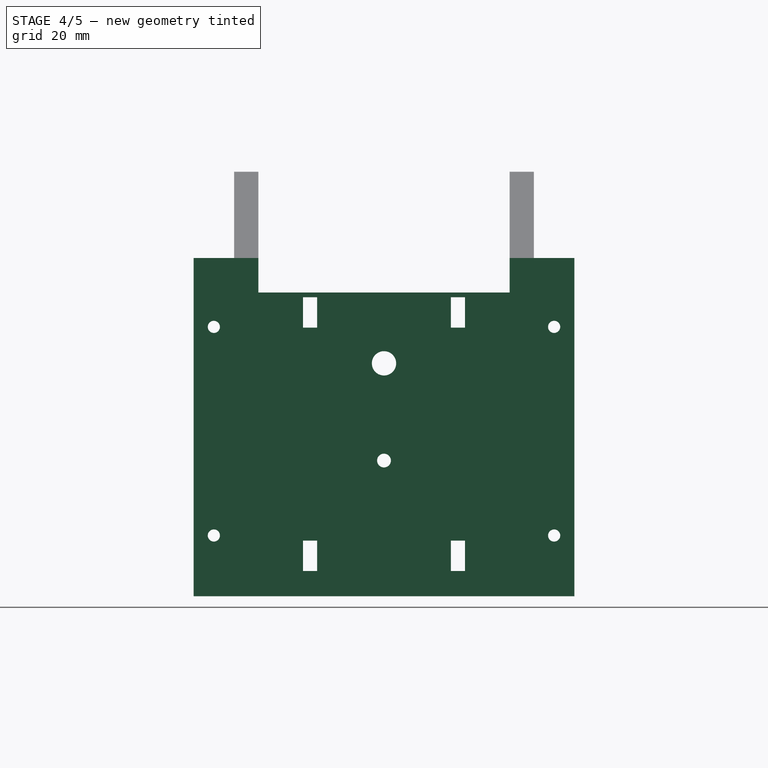
[diagram: stage 4 of 5 — right view after this stage's code; geometry added in this stage tinted green]
FEATURE [Sketcher::SketchObject] Sketch022
  ExternalGeometry = -> [Pocket015]
  FullyConstrained = true
  MapMode = 5
  Placement = pos=(0,-37,0) rot=(1,0,0;1.5708rad)
  Support = -> [Pocket015]
  sketch-geometry (1):
    g0: Circle CenterX=-103.195 CenterY=9.53929 CenterZ=0 NormalX=0 NormalY=0 NormalZ=1 AngleXU=0 Radius=5.25
  constraints (4):
    c: DistanceX(g-3,g-4) = 41
    c: Diameter(g0) = 10.5
    c: Distance(g-3,g0) = 53.07
    c: Distance(g-4,g0) = 65.95
FEATURE [PartDesign::Pocket] Pocket016
  BaseFeature = -> Pocket015
  Direction = (0,1,-2e-16)
  Length = 5
  Length2 = 5
  Profile = -> Sketch022
  ReferenceAxis = -> Sketch022 [N_Axis]
  Type = 1
FEATURE [Sketcher::SketchObject] Sketch023
  ExternalGeometry = -> [Pocket016]
  FullyConstrained = false
  MapMode = 5
  Placement = pos=(-44,0,0) rot=(0.57735,0.57735,0.57735;2.0944rad)
  Support = -> [Pocket016]
  sketch-geometry (1):
    g0: Circle CenterX=0 CenterY=-26.5 CenterZ=0 NormalX=0 NormalY=0 NormalZ=1 AngleXU=0 Radius=10.225
  constraints (2):
    c: Diameter(g-3) = 12
    c: Coincident(g0,g-3)
FEATURE [PartDesign::Pad] Pad005
  BaseFeature = -> Pocket016
  Direction = (1,0,0)
  Length = 10
  Length2 = 10
  Profile = -> Sketch023
  ReferenceAxis = -> Sketch023 [N_Axis]
  Reversed = true
  Type = 3
  UpToFace = -> Pocket016 [Face43]
FEATURE [Sketcher::SketchObject] Sketch024
  ExternalGeometry = -> [Pad005]
  FullyConstrained = true
  MapMode = 5
  Placement = pos=(-49,0,0) rot=(0.57735,-0.57735,-0.57735;2.0944rad)
  Support = -> [Pad005]
  sketch-geometry (1):
    g0: Circle CenterX=0 CenterY=-26.5 CenterZ=0 NormalX=0 NormalY=0 NormalZ=1 AngleXU=0 Radius=3
  constraints (2):
    c: Coincident(g0,g-3)
    c: Diameter(g0) = 6
FEATURE [PartDesign::Pocket] Pocket017
  BaseFeature = -> Pad005
  Direction = (1,0,0)
  Length = 5
  Length2 = 5
  Profile = -> Sketch024
  ReferenceAxis = -> Sketch024 [N_Axis]
  Type = 1
FEATURE [Sketcher::SketchObject] Sketch025
  ExternalGeometry = -> [Pocket017]
  FullyConstrained = true
  MapMode = 5
  Placement = pos=(-49,0,0) rot=(0.57735,-0.57735,-0.57735;2.0944rad)
  Support = -> [Pocket017]
  sketch-geometry (1):
    g0: Circle CenterX=0 CenterY=-26.5 CenterZ=0 NormalX=0 NormalY=0 NormalZ=1 AngleXU=0 Radius=6
  constraints (2):
    c: Coincident(g0,g-3)
    c: Diameter(g0) = 12
FEATURE [PartDesign::Pocket] Pocket018
  BaseFeature = -> Pocket017
  Direction = (1,0,0)
  Length = 3
  Length2 = 5
  Profile = -> Sketch025
  ReferenceAxis = -> Sketch025 [N_Axis]
  Type = 0
FEATURE [Sketcher::SketchObject] Sketch027
  ExternalGeometry = -> [Pocket018]
  FullyConstrained = false
  MapMode = 5
  Placement = pos=(-44,0,0) rot=(0.57735,0.57735,0.57735;2.0944rad)
  Support = -> [Pocket018]
  sketch-geometry (26):
    g0: LineSegment StartX=-47 StartY=-0.5 StartZ=0 EndX=-31 EndY=-0.5 EndZ=0
    g1: LineSegment StartX=47 StartY=-0.5 StartZ=0 EndX=47 EndY=-84 EndZ=0
    g2: LineSegment StartX=47 StartY=-84 StartZ=0 EndX=-47 EndY=-84 EndZ=0
    g3: LineSegment StartX=-47 StartY=-84 StartZ=0 EndX=-47 EndY=-0.5 EndZ=0
    g4: LineSegment StartX=31 StartY=-0.5 StartZ=0 EndX=31 EndY=-9 EndZ=0
    g5: LineSegment StartX=31 StartY=-9 StartZ=0 EndX=-31 EndY=-9 EndZ=0
    g6: LineSegment StartX=-31 StartY=-9 StartZ=0 EndX=-31 EndY=-0.5 EndZ=0
    g7: LineSegment StartX=31 StartY=-0.5 StartZ=0 EndX=47 EndY=-0.5 EndZ=0
    g8: LineSegment StartX=-20 StartY=-70.25 StartZ=0 EndX=-16.5 EndY=-70.25 EndZ=0
    g9: LineSegment StartX=-16.5 StartY=-70.25 StartZ=0 EndX=-16.5 EndY=-77.75 EndZ=0
    g10: LineSegment StartX=-16.5 StartY=-77.75 StartZ=0 EndX=-20 EndY=-77.75 EndZ=0
    g11: LineSegment StartX=-20 StartY=-77.75 StartZ=0 EndX=-20 EndY=-70.25 EndZ=0
    g12: LineSegment StartX=20 StartY=-70.25 StartZ=0 EndX=16.5 EndY=-70.25 EndZ=0
    g13: LineSegment StartX=16.5 StartY=-70.25 StartZ=0 EndX=16.5 EndY=-77.75 EndZ=0
    g14: LineSegment StartX=16.5 StartY=-77.75 StartZ=0 EndX=20 EndY=-77.75 EndZ=0
    g15: LineSegment StartX=20 StartY=-77.75 StartZ=0 EndX=20 EndY=-70.25 EndZ=0
    g16: LineSegment StartX=20 StartY=-10.1944 StartZ=0 EndX=16.5 EndY=-10.1944 EndZ=0
    g17: LineSegment StartX=16.5 StartY=-10.1944 StartZ=0 EndX=16.5 EndY=-17.6944 EndZ=0
    g18: LineSegment StartX=16.5 StartY=-17.6944 StartZ=0 EndX=20 EndY=-17.6944 EndZ=0
    g19: LineSegment StartX=20 StartY=-17.6944 StartZ=0 EndX=20 EndY=-10.1944 EndZ=0
    g20: LineSegment StartX=-16.5 StartY=-10.1944 StartZ=0 EndX=-20 EndY=-10.1944 EndZ=0
    g21: LineSegment StartX=-20 StartY=-10.1944 StartZ=0 EndX=-20 EndY=-17.6944 EndZ=0
    g22: LineSegment StartX=-20 StartY=-17.6944 StartZ=0 EndX=-16.5 EndY=-17.6944 EndZ=0
    g23: LineSegment StartX=-16.5 StartY=-17.6944 StartZ=0 EndX=-16.5 EndY=-10.1944 EndZ=0
    g24: Circle CenterX=0 CenterY=-50.5 CenterZ=0 NormalX=0 NormalY=0 NormalZ=1 AngleXU=0 Radius=1.7
    g25: Circle CenterX=0 CenterY=-26.5 CenterZ=0 NormalX=0 NormalY=0 NormalZ=1 AngleXU=0 Radius=3
  constraints (66):
    c: Coincident(g7,g1)
    c: Coincident(g1,g2)
    c: Coincident(g2,g3)
    c: Coincident(g3,g0)
    c: Horizontal(g0)
    c: Horizontal(g2)
    c: Vertical(g1)
    c: Vertical(g3)
    c: Coincident(g0,g-3)
    c: Coincident(g1,g-4)
    c: Coincident(g4,g5)
    c: Coincident(g5,g6)
    c: Horizontal(g5)
    c: Vertical(g4)
    c: Vertical(g6)
    c: Coincident(g4,g-6)
    c: DistanceY(g1,g1) = 83.5
    c: DistanceY(g4,g4) = 8.5
    c: DistanceY(g6,g6) = 8.5
    c: DistanceX(g7,g7) = 16
    c: DistanceX(g5,g5) = 62
    c: DistanceX(g0,g0) = 16
    c: Horizontal(g7,g4)
    c: Coincident(g8,g9)
    c: Coincident(g9,g10)
    c: Coincident(g10,g11)
    c: Coincident(g11,g8)
    c: Horizontal(g8)
    c: Horizontal(g10)
    c: Vertical(g9)
    c: Vertical(g11)
    c: Coincident(g8,g-13)
    c: Coincident(g9,g-14)
    c: Coincident(g12,g13)
    c: Coincident(g13,g14)
    c: Coincident(g14,g15)
    c: Coincident(g15,g12)
    c: Horizontal(g12)
    c: Horizontal(g14)
    c: Vertical(g13)
    c: Vertical(g15)
    c: Coincident(g12,g-12)
    c: Coincident(g13,g-11)
    c: Coincident(g16,g17)
    c: Coincident(g17,g18)
    c: Coincident(g18,g19)
    c: Coincident(g19,g16)
    c: Horizontal(g16)
    c: Horizontal(g18)
    c: Vertical(g17)
    c: Vertical(g19)
    c: Coincident(g16,g-10)
    c: Coincident(g17,g-9)
    c: Coincident(g20,g21)
    c: Coincident(g21,g22)
    c: Coincident(g22,g23)
    c: Coincident(g23,g20)
    c: Horizontal(g20)
    c: Horizontal(g22)
    c: Vertical(g21)
    c: Vertical(g23)
    c: Coincident(g20,g-7)
    c: Coincident(g21,g-8)
    c: Coincident(g24,g-15)
    c: Coincident(g25,g-16)
    c: Diameter(g25) = 6
FEATURE [PartDesign::Pad] Pad006
  BaseFeature = -> Pocket018
  Direction = (1,0,0)
  Length = 19.0518
  Length2 = 10
  Profile = -> Sketch027
  ReferenceAxis = -> Sketch027 [N_Axis]
  Type = 0
FEATURE [Sketcher::SketchObject] Sketch028
  ExternalGeometry = -> [Pad006]
  FullyConstrained = true
  MapMode = 5
  Placement = pos=(-49,0,0) rot=(0.57735,-0.57735,-0.57735;2.0944rad)
  Support = -> [Pad006]
  sketch-geometry (4):
    g0: LineSegment StartX=-14 StartY=-14 StartZ=0 EndX=14 EndY=-14 EndZ=0
    g1: LineSegment StartX=14 StartY=-14 StartZ=0 EndX=14 EndY=-61 EndZ=0
    g2: LineSegment StartX=14 StartY=-61 StartZ=0 EndX=-14 EndY=-61 EndZ=0
    g3: LineSegment StartX=-14 StartY=-61 StartZ=0 EndX=-14 EndY=-14 EndZ=0
  constraints (11):
    c: Coincident(g0,g1)
    c: Coincident(g1,g2)
    c: Coincident(g2,g3)
    c: Coincident(g3,g0)
    c: Horizontal(g0)
    c: Horizontal(g2)
    c: Vertical(g1)
    c: Vertical(g3)
    c: Coincident(g0,g-3)
    c: Vertical(g1,g-4)
    c: Horizontal(g1,g-4)
FEATURE [PartDesign::Pocket] Pocket019
  BaseFeature = -> Pad006
  Direction = (1,0,0)
  Length = 20
  Length2 = 5
  Profile = -> Sketch028
  ReferenceAxis = -> Sketch028 [N_Axis]
  Type = 0
FEATURE [Sketcher::SketchObject] Sketch029
  ExternalGeometry = -> [Pocket019]
  FullyConstrained = true
  MapMode = 5
  Placement = pos=(-49,0,0) rot=(0.57735,-0.57735,-0.57735;2.0944rad)
  Support = -> [Pocket019]
  sketch-geometry (4):
    g0: Circle CenterX=-42 CenterY=-69 CenterZ=0 NormalX=0 NormalY=0 NormalZ=1 AngleXU=0 Radius=1.5
    g1: Circle CenterX=-42 CenterY=-17.5 CenterZ=0 NormalX=0 NormalY=0 NormalZ=1 AngleXU=0 Radius=1.5
    g2: Circle CenterX=42 CenterY=-17.5 CenterZ=0 NormalX=0 NormalY=0 NormalZ=1 AngleXU=0 Radius=1.5
    g3: Circle CenterX=42 CenterY=-69 CenterZ=0 NormalX=0 NormalY=0 NormalZ=1 AngleXU=0 Radius=1.5
  constraints (8):
    c: Coincident(g0,g-6)
    c: Coincident(g1,g-3)
    c: Coincident(g2,g-4)
    c: Coincident(g3,g-5)
    c: Diameter(g3) = 3
    c: Equal(g2,g3)
    c: Equal(g0,g2)
    c: Equal(g1,g2)
FEATURE [PartDesign::Pocket] Pocket020
  BaseFeature = -> Pocket019
  Direction = (1,0,0)
  Length = 5
  Length2 = 5
  Profile = -> Sketch029
  ReferenceAxis = -> Sketch029 [N_Axis]
  Type = 1
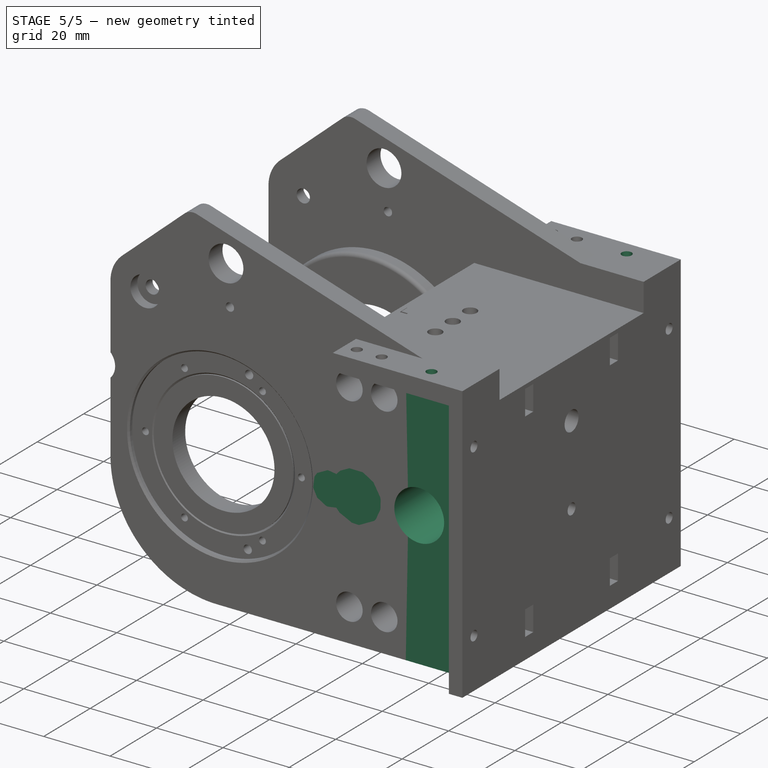
[diagram: stage 5 of 5 — iso view after this stage's code; geometry added in this stage tinted green]
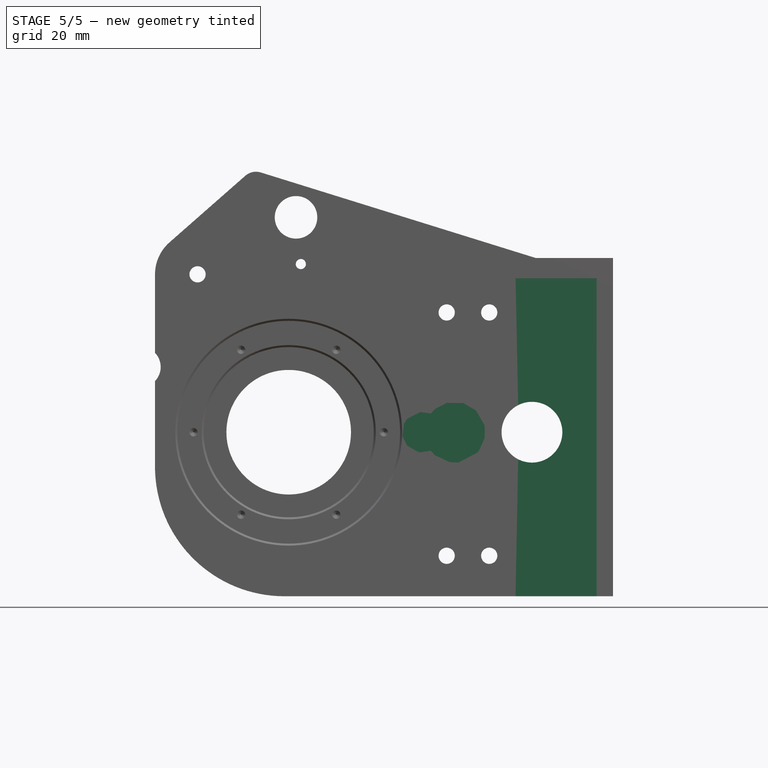
[diagram: stage 5 of 5 — front view after this stage's code; geometry added in this stage tinted green]
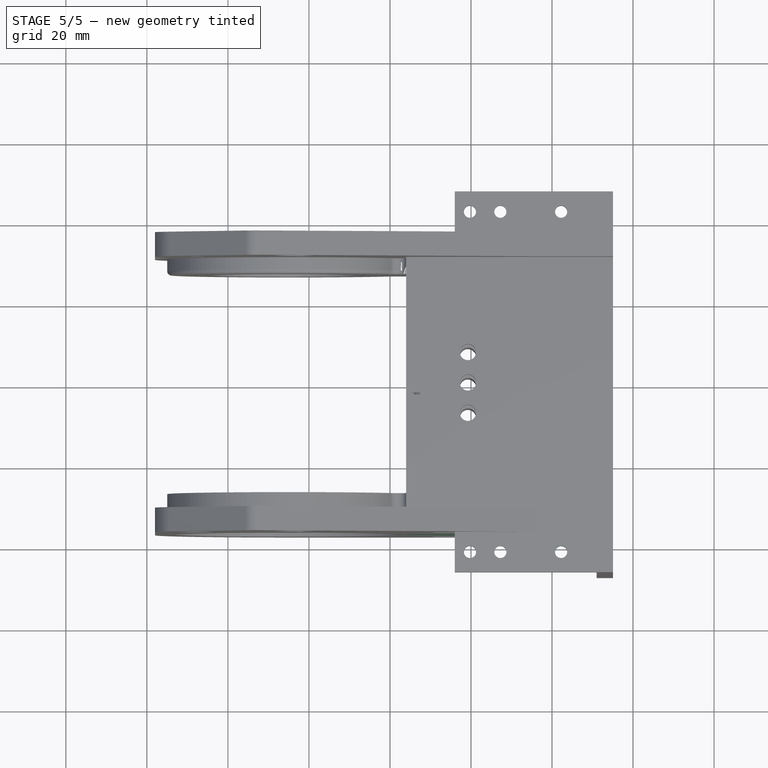
[diagram: stage 5 of 5 — top view after this stage's code; geometry added in this stage tinted green]
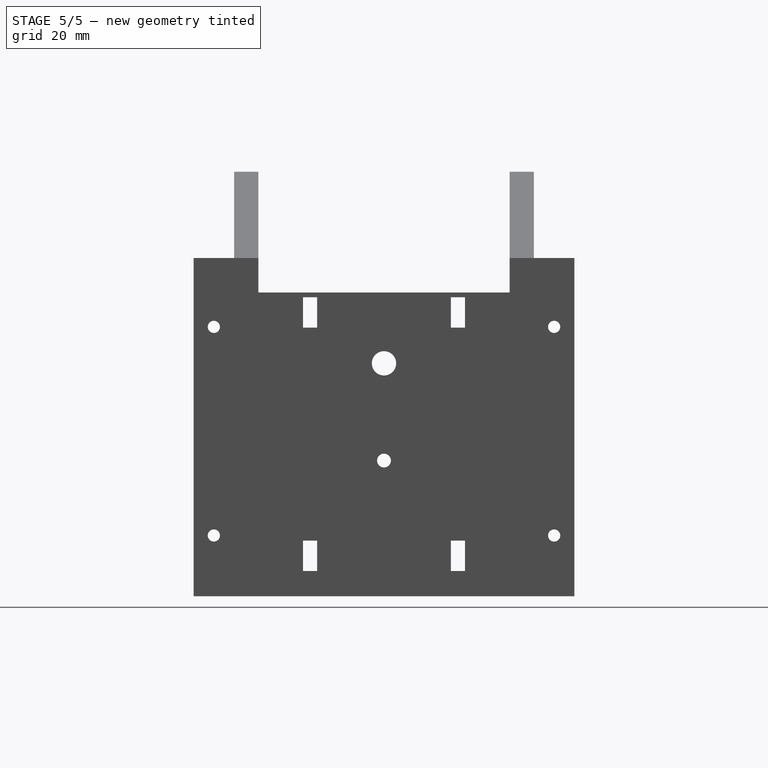
[diagram: stage 5 of 5 — right view after this stage's code; geometry added in this stage tinted green]
FEATURE [Sketcher::SketchObject] Sketch030
  ExternalGeometry = -> [Pocket020]
  FullyConstrained = true
  MapMode = 5
  Placement = pos=(-49,0,0) rot=(0.57735,-0.57735,-0.57735;2.0944rad)
  Support = -> [Pocket020]
  sketch-geometry (8):
    g0: LineSegment StartX=36.9999 StartY=-84 StartZ=0 EndX=47 EndY=-84 EndZ=0
    g1: LineSegment StartX=47 StartY=-84 StartZ=0 EndX=47 EndY=-5.5 EndZ=0
    g2: LineSegment StartX=47 StartY=-5.5 StartZ=0 EndX=36.9999 EndY=-5.5 EndZ=0
    g3: LineSegment StartX=36.9999 StartY=-5.5 StartZ=0 EndX=36.9999 EndY=-84 EndZ=0
    g4: LineSegment StartX=-47 StartY=-5.5 StartZ=0 EndX=-37 EndY=-5.5 EndZ=0
    g5: LineSegment StartX=-37 StartY=-5.5 StartZ=0 EndX=-37 EndY=-84.0001 EndZ=0
    g6: LineSegment StartX=-37 StartY=-84.0001 StartZ=0 EndX=-47 EndY=-84.0001 EndZ=0
    g7: LineSegment StartX=-47 StartY=-84.0001 StartZ=0 EndX=-47 EndY=-5.5 EndZ=0
  constraints (20):
    c: Coincident(g0,g1)
    c: Coincident(g1,g2)
    c: Coincident(g2,g3)
    c: Coincident(g3,g0)
    c: Horizontal(g0)
    c: Horizontal(g2)
    c: Vertical(g1)
    c: Vertical(g3)
    c: Coincident(g0,g-4)
    c: Coincident(g1,g-3)
    c: Coincident(g4,g5)
    c: Coincident(g5,g6)
    c: Coincident(g6,g7)
    c: Coincident(g7,g4)
    c: Horizontal(g4)
    c: Horizontal(g6)
    c: Vertical(g5)
    c: Vertical(g7)
    c: Coincident(g4,g-6)
    c: Coincident(g5,g-5)
FEATURE [PartDesign::Pocket] Pocket021
  BaseFeature = -> Pocket020
  Direction = (1,0,0)
  Length = 20
  Length2 = 5
  Profile = -> Sketch030
  ReferenceAxis = -> Sketch030 [N_Axis]
  Type = 0
FEATURE [Sketcher::SketchObject] Sketch031
  ExternalGeometry = -> [Pocket021]
  FullyConstrained = true
  MapMode = 5
  Placement = pos=(0,0,-0.5) rot=(0,0,1;0rad)
  Support = -> [Pocket021]
  sketch-geometry (2):
    g0: Circle CenterX=-37.75 CenterY=42 CenterZ=0 NormalX=0 NormalY=0 NormalZ=1 AngleXU=0 Radius=1.5
    g1: Circle CenterX=-37.75 CenterY=-42 CenterZ=0 NormalX=0 NormalY=0 NormalZ=1 AngleXU=0 Radius=1.5
  constraints (6):
    c: Vertical(g1,g0)
    c: Horizontal(g-3,g0)
    c: Horizontal(g-4,g1)
    c: Equal(g1,g0)
    c: Diameter(g0) = 3
    c: DistanceX(g-3,g0) = 15
FEATURE [PartDesign::Pocket] Pocket022
  BaseFeature = -> Pocket021
  Direction = (0,0,-1)
  Length = 5
  Length2 = 5
  Profile = -> Sketch031
  ReferenceAxis = -> Sketch031 [N_Axis]
  Type = 1
FEATURE [Sketcher::SketchObject] Sketch032
  ExternalGeometry = -> [Pocket022]
  FullyConstrained = false
  MapMode = 5
  Placement = pos=(0,-37,0) rot=(1,0,0;1.5708rad)
  Support = -> [Pocket022]
  sketch-geometry (4):
    g0: ArcOfCircle CenterX=-64 CenterY=-43.5 CenterZ=0 NormalX=0 NormalY=0 NormalZ=1 AngleXU=0 Radius=7.5 StartAngle=3.79544 EndAngle=8.77093
    g1: ArcOfCircle CenterX=-72 CenterY=-43.5 CenterZ=0 NormalX=0 NormalY=0 NormalZ=1 AngleXU=0 Radius=5 StartAngle=4.61222 EndAngle=5.13416
    g2: LineSegment StartX=-72.5 StartY=-38.5251 StartZ=0 EndX=-72.5 EndY=-48.4749 EndZ=0
    g3: ArcOfCircle CenterX=-72 CenterY=-43.5 CenterZ=0 NormalX=0 NormalY=0 NormalZ=1 AngleXU=0 Radius=5 StartAngle=1.14903 EndAngle=1.67096
  constraints (10):
    c: Coincident(g0,g-3)
    c: Equal(g0,g-3)
    c: Vertical(g2)
    c: Coincident(g3,g2)
    c: Coincident(g1,g2)
    c: PointOnObject(g0,g1)
    c: Equal(g1,g3)
    c: PointOnObject(g1,g-3)
    c: Coincident(g3,g0)
    c: Coincident(g1,g3)
FEATURE [PartDesign::Pad] Pad007
  BaseFeature = -> Pocket022
  Direction = (0,-1,2e-16)
  Length = 10
  Length2 = 10
  Profile = -> Sketch032
  ReferenceAxis = -> Sketch032 [N_Axis]
  Reversed = true
  Type = 3
  UpToFace = -> Pocket022 [Face5]
FEATURE [Sketcher::SketchObject] Sketch033
  ExternalGeometry = -> [Pad007]
  FullyConstrained = true
  MapMode = 5
  Placement = pos=(0,-37,0) rot=(1,0,0;1.5708rad)
  Support = -> [Pad007]
  sketch-geometry (2):
    g0: ArcOfCircle CenterX=-72 CenterY=-43.5 CenterZ=0 NormalX=0 NormalY=0 NormalZ=1 AngleXU=0 Radius=5 StartAngle=1.67096 EndAngle=4.61222
    g1: LineSegment StartX=-72.5 StartY=-48.4749 StartZ=0 EndX=-72.5 EndY=-38.5251 EndZ=0
  constraints (5):
    c: Equal(g-3,g0)
    c: Coincident(g1,g-4)
    c: Coincident(g1,g-3)
    c: Coincident(g0,g-4)
    c: Coincident(g0,g-3)
FEATURE [PartDesign::Pad] Pad008
  BaseFeature = -> Pad007
  Direction = (0,-1,2e-16)
  Length = 10
  Length2 = 10
  Profile = -> Sketch033
  ReferenceAxis = -> Sketch033 [N_Axis]
  Type = 3
  UpToFace = -> Pad007 [Face3]
FEATURE [Sketcher::SketchObject] Sketch034
  ExternalGeometry = -> [Pad008]
  FullyConstrained = false
  MapMode = 5
  Placement = pos=(0,37,-1.04e-14) rot=(0,0.707107,0.707107;3.14159rad)
  Support = -> [Pad008]
  sketch-geometry (4):
    g0: ArcOfCircle CenterX=72 CenterY=-43.5 CenterZ=0 NormalX=0 NormalY=0 NormalZ=1 AngleXU=0 Radius=5 StartAngle=1.47063 EndAngle=1.99257
    g1: ArcOfCircle CenterX=64 CenterY=-43.5 CenterZ=0 NormalX=0 NormalY=0 NormalZ=1 AngleXU=0 Radius=7.5 StartAngle=0.653847 EndAngle=5.62934
    g2: LineSegment StartX=72.5 StartY=-38.5251 StartZ=0 EndX=72.5 EndY=-48.4749 EndZ=0
    g3: ArcOfCircle CenterX=72 CenterY=-43.5 CenterZ=0 NormalX=0 NormalY=0 NormalZ=1 AngleXU=0 Radius=5 StartAngle=4.29062 EndAngle=4.81256
  constraints (10):
    c: Equal(g1,g-3)
    c: Coincident(g2,g-4)
    c: Coincident(g0,g2)
    c: PointOnObject(g3,g2)
    c: Coincident(g1,g-3)
    c: Coincident(g1,g-3)
    c: Equal(g0,g3)
    c: PointOnObject(g0,g1)
    c: PointOnObject(g3,g-3)
    c: Coincident(g0,g3)
FEATURE [PartDesign::Pad] Pad009
  BaseFeature = -> Pad008
  Direction = (0,1,-2e-16)
  Length = 10
  Length2 = 10
  Profile = -> Sketch034
  ReferenceAxis = -> Sketch034 [N_Axis]
  Type = 3
  UpToFace = -> Pad008 [Face40]
FEATURE [Sketcher::SketchObject] Sketch035
  ExternalGeometry = -> [Pad009]
  FullyConstrained = true
  MapMode = 5
  Placement = pos=(0,37,0) rot=(0,0.707107,0.707107;3.14159rad)
  Support = -> [Pad009]
  sketch-geometry (2):
    g0: ArcOfCircle CenterX=72 CenterY=-43.5 CenterZ=0 NormalX=0 NormalY=0 NormalZ=1 AngleXU=0 Radius=5 StartAngle=4.81256 EndAngle=7.75381
    g1: LineSegment StartX=72.5 StartY=-38.5251 StartZ=0 EndX=72.5 EndY=-48.4749 EndZ=0
  constraints (5):
    c: Coincident(g1,g-3)
    c: Coincident(g1,g-4)
    c: Equal(g0,g-3)
    c: Coincident(g0,g-3)
    c: Coincident(g0,g-4)
FEATURE [PartDesign::Pad] Pad010
  BaseFeature = -> Pad009
  Direction = (0,1,-2e-16)
  Length = 10
  Length2 = 10
  Profile = -> Sketch035
  ReferenceAxis = -> Sketch035 [N_Axis]
  Type = 3
  UpToFace = -> Pad009 [Face38]
FEATURE [Sketcher::SketchObject] Sketch036
  ExternalGeometry = -> [Pad010]
  FullyConstrained = true
  MapMode = 5
  Placement = pos=(0,-36.9999,0) rot=(1,0,0;1.5708rad)
  Support = -> [Pad010]
  sketch-geometry (1):
    g0: Circle CenterX=-44.95 CenterY=-43.5 CenterZ=0 NormalX=0 NormalY=0 NormalZ=1 AngleXU=0 Radius=7.5
  constraints (3):
    c: Horizontal(g-3,g0)
    c: DistanceX(g0,g-4) = 15.95
    c: Diameter(g0) = 15
FEATURE [PartDesign::Pocket] Pocket023
  BaseFeature = -> Pad010
  Direction = (0,1,-2e-16)
  Length = 5
  Length2 = 5
  Profile = -> Sketch036
  ReferenceAxis = -> Sketch036 [N_Axis]
  Type = 1
FEATURE [Sketcher::SketchObject] Sketch037
  ExternalGeometry = -> [Pocket023]
  FullyConstrained = true
  MapMode = 5
  Placement = pos=(0,-36.9999,0) rot=(1,0,0;1.5708rad)
  Support = -> [Pocket023]
  sketch-geometry (1):
    g0: Circle CenterX=-44.95 CenterY=-43.5 CenterZ=0 NormalX=0 NormalY=0 NormalZ=1 AngleXU=0 Radius=7.5
  constraints (3):
    c: DistanceX(g-3,g-4) = 60.05
    c: Coincident(g0,g-4)
    c: Tangent(g0,g-4)
FEATURE [PartDesign::Pocket] Pocket024
  BaseFeature = -> Pocket023
  Direction = (0,1,-2e-16)
  Length = 50
  Length2 = 50
  Profile = -> Sketch037
  ReferenceAxis = -> Sketch037 [N_Axis]
  Type = 4
FEATURE [Sketcher::SketchObject] Sketch038
  ExternalGeometry = -> [Pocket024]
  FullyConstrained = true
  MapMode = 5
  Placement = pos=(0,-37,0) rot=(1,0,0;1.5708rad)
  Support = -> [Pocket024]
  constraints (4):
    c: DistanceX(g-3,g-4) = 60.05
    c: Diameter(g-5) = 10.5
    c: Distance(g-5,g-3) = 53.07
    c: Distance(g-5,g-4) = 78.7758
FEATURE [PartDesign::Body] Body
  BaseFeature = -> Part__Feature
  Group = -> [BaseFeature,Sketch,Pocket,Sketch001,Pad,Sketch002,Pad001,Sketch003,Pocket001,Sketch004,Pocket002,Sketch005,Pocket003,Sketch006,Pocket004,Fillet,Sketch007,Pocket005,Sketch008,Pad002,Sketch009,Pad003,Sketch010,Pocket006,Sketch011,Pocket007,Sketch012,Pocket008,Sketch014,Pocket009,Sketch015,Pocket010,Sketch016,Pocket011,Sketch017,Pocket012,Sketch018,Pocket013,Sketch019,Pocket014,Sketch020,Pad004,+33 more]
  Origin = -> Origin
  Tip = -> Pocket024
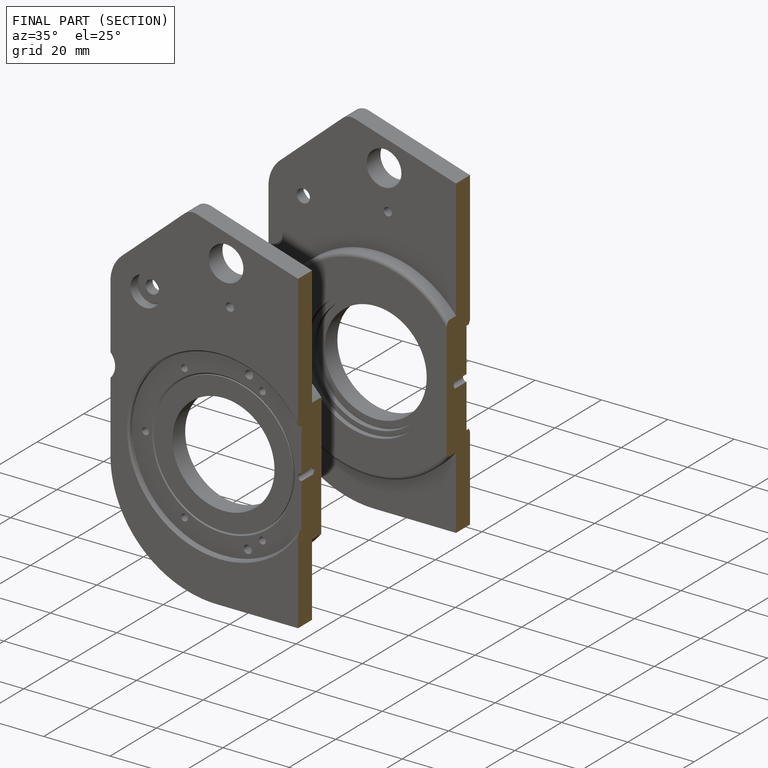
[diagram: finished part — half-section view (interior)]
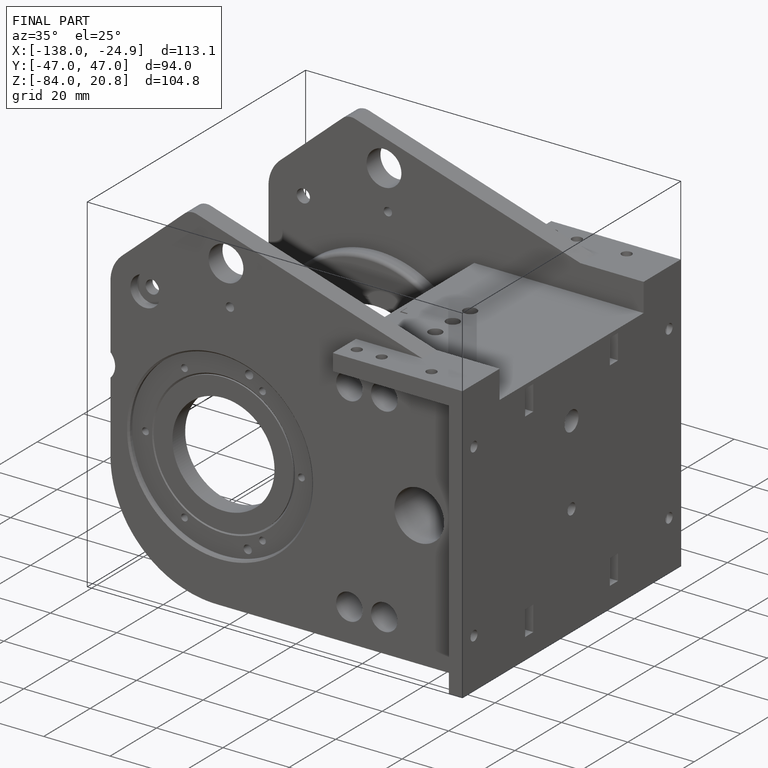
[diagram: finished part — iso view with bounding-box wireframe]
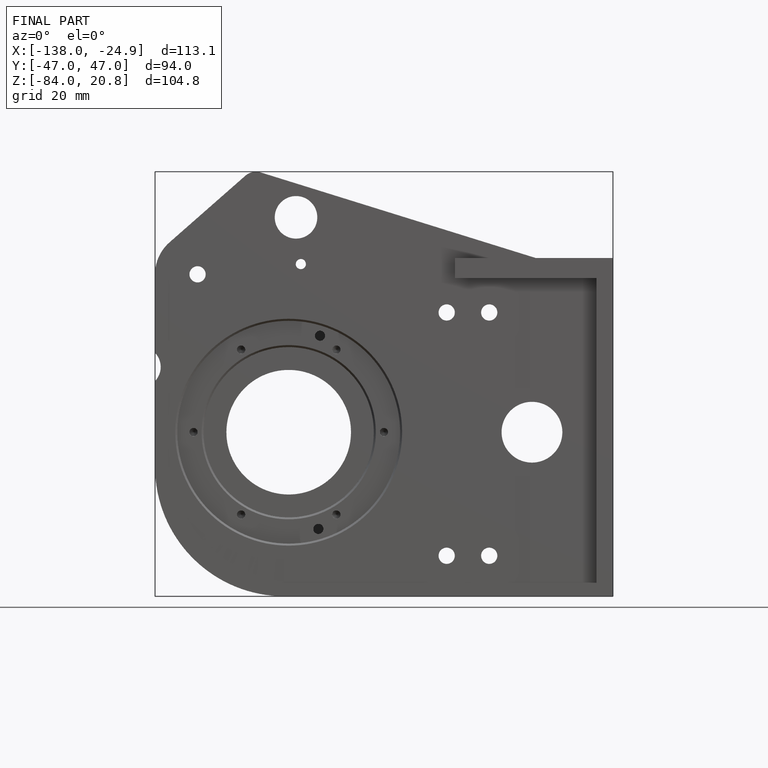
[diagram: finished part — front view with bounding-box wireframe]
